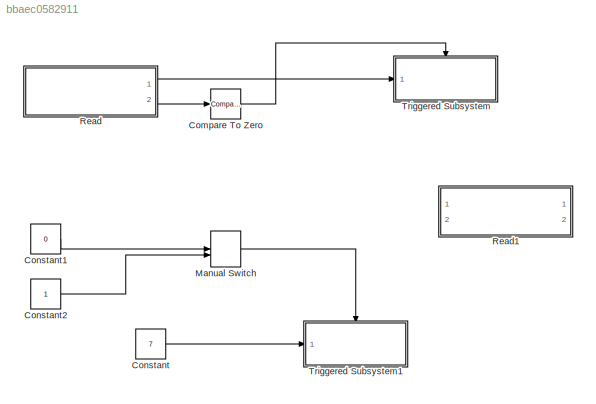
MODEL slx_bbaec0582911
KIND model
CONFIG InitFcn = ben = comms.Bt('BEN',1);\nben.init();
BLOCK [Reference] Compare To Zero  REF=simulink/Logic and Bit
Operations/Compare
To Zero
  OutDataTypeStr = boolean
  Ports = [1, 1]
  SourceBlock = simulink/Logic and Bit\nOperations/Compare\nTo Zero
  SourceType = Compare To Zero
  ZeroCross = on
  relop = >
BLOCK [Constant] Constant
  Value = 7
BLOCK [Constant] Constant1
  Value = 0
BLOCK [Constant] Constant2
BLOCK [ManualSwitch] Manual Switch
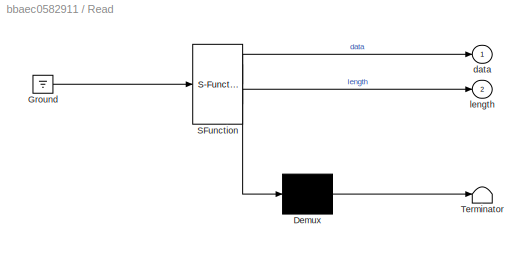
BLOCK [SubSystem] Read
  ErrorFcn = Stateflow.Translate.translate
  PermitHierarchicalResolution = ExplicitOnly
  Ports = [0, 2]
  RequestExecContextInheritance = off
  SFBlockType = MATLAB Function
  TreatAsAtomicUnit = on
BLOCK [Demux] Read/ Demux 
  Outputs = 1
  Ports = [1, 1]
BLOCK [Ground] Read/ Ground 
BLOCK [S-Function] Read/ SFunction 
  EnableBusSupport = on
  FunctionName = sf_sfun
  PortCounts = [1 3]
  Ports = [1, 3]
  Tag = Stateflow S-Function callBluetoothExtrinsic 2
BLOCK [Terminator] Read/ Terminator 
BLOCK [Outport] Read/data
  IconDisplay = Port number
BLOCK [Outport] Read/length
  IconDisplay = Port number
  Port = 2
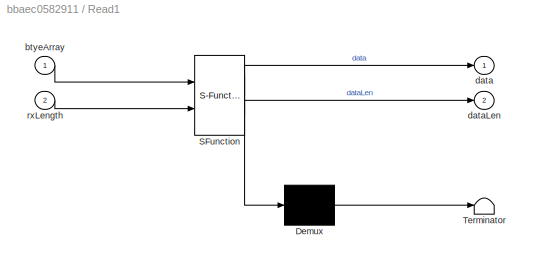
BLOCK [SubSystem] Read1
  ErrorFcn = Stateflow.Translate.translate
  PermitHierarchicalResolution = ExplicitOnly
  Ports = [2, 2]
  RequestExecContextInheritance = off
  SFBlockType = MATLAB Function
  TreatAsAtomicUnit = on
BLOCK [Demux] Read1/ Demux 
  Outputs = 1
  Ports = [1, 1]
BLOCK [S-Function] Read1/ SFunction 
  EnableBusSupport = on
  FunctionName = sf_sfun
  PortCounts = [2 3]
  Ports = [2, 3]
  Tag = Stateflow S-Function callBluetoothExtrinsic 3
BLOCK [Terminator] Read1/ Terminator 
BLOCK [Inport] Read1/btyeArray
  IconDisplay = Port number
BLOCK [Outport] Read1/data
  IconDisplay = Port number
BLOCK [Outport] Read1/dataLen
  IconDisplay = Port number
  Port = 2
BLOCK [Inport] Read1/rxLength
  IconDisplay = Port number
  Port = 2
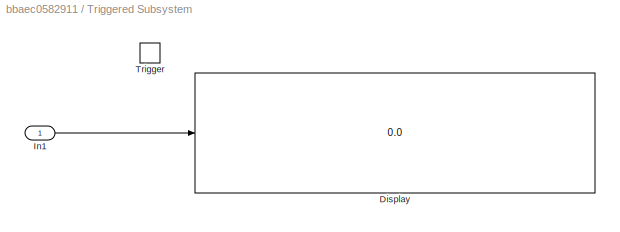
BLOCK [SubSystem] Triggered Subsystem
  Ports = [1, 0, 0, 1]
  RequestExecContextInheritance = off
  TreatAsAtomicUnit = on
BLOCK [Display] Triggered Subsystem/Display
  Decimation = 1
  Ports = [1]
BLOCK [Inport] Triggered Subsystem/In1
  IconDisplay = Port number
BLOCK [TriggerPort] Triggered Subsystem/Trigger
  Ports = []
  StatesWhenEnabling = held
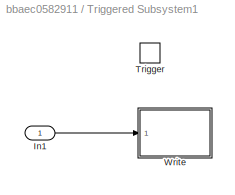
BLOCK [SubSystem] Triggered Subsystem1
  Ports = [1, 0, 0, 1]
  RequestExecContextInheritance = off
  TreatAsAtomicUnit = on
BLOCK [Inport] Triggered Subsystem1/In1
  IconDisplay = Port number
BLOCK [TriggerPort] Triggered Subsystem1/Trigger
  Ports = []
  StatesWhenEnabling = held
  TriggerType = either
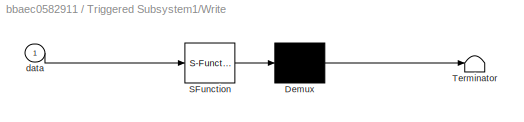
BLOCK [SubSystem] Triggered Subsystem1/Write
  ErrorFcn = Stateflow.Translate.translate
  PermitHierarchicalResolution = ExplicitOnly
  Ports = [1]
  RequestExecContextInheritance = off
  SFBlockType = MATLAB Function
  TreatAsAtomicUnit = on
BLOCK [Demux] Triggered Subsystem1/Write/ Demux 
  Outputs = 1
  Ports = [1, 1]
BLOCK [S-Function] Triggered Subsystem1/Write/ SFunction 
  EnableBusSupport = on
  FunctionName = sf_sfun
  PortCounts = [1 1]
  Ports = [1, 1]
  Tag = Stateflow S-Function callBluetoothExtrinsic 1
BLOCK [Terminator] Triggered Subsystem1/Write/ Terminator 
BLOCK [Inport] Triggered Subsystem1/Write/data
  IconDisplay = Port number
LINE Compare To Zero:1 -> Triggered Subsystem:trigger
LINE Constant1:1 -> Manual Switch:1
LINE Constant2:1 -> Manual Switch:2
LINE Constant:1 -> Triggered Subsystem1:1
LINE Manual Switch:1 -> Triggered Subsystem1:trigger
LINE Read:1 -> Triggered Subsystem:1
LINE Read:2 -> Compare To Zero:1
LINE Triggered Subsystem/In1:1 -> Triggered Subsystem/Display:1
LINE Triggered Subsystem1/In1:1 -> Triggered Subsystem1/Write:1
CHART Triggered
Subsystem1/Write states=1 transitions=1
  STATE_LABEL 'eML_blk_kernel()'
  STATE_LABEL "SCRIPT:\nfunction write(data)\n%#codegen\n\ncoder.extrinsic('comms.writeNXTBluetooth')\ncomms.writeNXTBluetooth(data);"
CHART Read states=1 transitions=1
  STATE_LABEL 'eML_blk_kernel()'
  STATE_LABEL "SCRIPT:\nfunction [data, length] = read()\n%#codegen\n\ncoder.extrinsic('comms.readWrapper');\n\ndata = uint8(0);\nlength = uint8(0);\n[data,length] = comms.readWrapper(uint8(1),'BEN',1);\n\nend"
CHART Read1 states=1 transitions=1
  STATE_LABEL 'eML_blk_kernel()'
  STATE_LABEL 'SCRIPT:\nfunction [data,dataLen] = read(btyeArray,rxLength)\n%#codegen\n\npersistent ben;\n\nif(isempty(ben))\n    bufferLen = uint8(1);\n    ben = comms.RawNXTDataProcessor(bufferLen);\nend\n\ndataArray = uint8(0);\ndataLen = uint8(0);\n[data,dataLen] = ben.process(btyeArray,rxLength);\n\nend'
